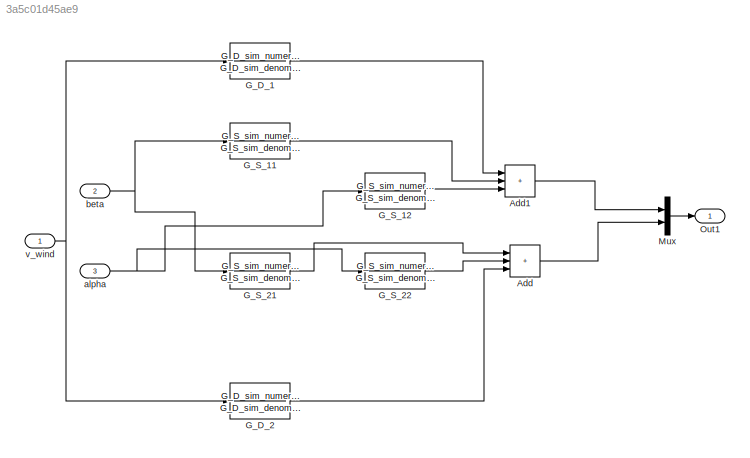
MODEL slx_3a5c01d45ae9
KIND model
CONFIG AbsTol = auto
CONFIG EnableMultiTasking = off
CONFIG FixedStep = auto
CONFIG MaxStep = auto
CONFIG MinStep = auto
CONFIG RelTol = 1e-3
CONFIG SampleTimeConstraint = Unconstrained
CONFIG SolverName = VariableStepAuto
CONFIG StartTime = 0.0
CONFIG StopTime = 10.0
BLOCK [Sum] Add
  IconShape = rectangular
  Inputs = +++
BLOCK [Sum] Add1
  IconShape = rectangular
  Inputs = +++
BLOCK [TransferFcn] G_D_1
  Denominator = G_D_sim_denominator_1{1}
  Numerator = G_D_sim_numerator_1{1}
BLOCK [TransferFcn] G_D_2
  Denominator = G_D_sim_denominator_2{1}
  Numerator = G_D_sim_numerator_2{1}
BLOCK [TransferFcn] G_S_11
  Denominator = G_S_sim_denominator_11{1}
  Numerator = G_S_sim_numerator_11{1}
BLOCK [TransferFcn] G_S_12
  Denominator = G_S_sim_denominator_12{1}
  Numerator = G_S_sim_numerator_12{1}
BLOCK [TransferFcn] G_S_21
  Denominator = G_S_sim_denominator_21{1}
  Numerator = G_S_sim_numerator_21{1}
BLOCK [TransferFcn] G_S_22
  Denominator = G_S_sim_denominator_22{1}
  Numerator = G_S_sim_numerator_22{1}
BLOCK [Mux] Mux
  DisplayOption = bar
  Inputs = 2
BLOCK [Outport] Out1
BLOCK [Inport] alpha
  Port = 3
BLOCK [Inport] beta
  Port = 2
BLOCK [Inport] v_wind
LINE Add1:1 -> Mux:1
LINE Add:1 -> Mux:2
LINE G_D_1:1 -> Add1:1
LINE G_D_2:1 -> Add:3
LINE G_S_11:1 -> Add1:2
LINE G_S_12:1 -> Add1:3
LINE G_S_21:1 -> Add:1
LINE G_S_22:1 -> Add:2
LINE Mux:1 -> Out1:1
NET alpha:1 -> G_S_12:1, G_S_22:1
NET beta:1 -> G_S_11:1, G_S_21:1
NET v_wind:1 -> G_D_1:1, G_D_2:1
note: NET lines group one-source signal fan-out (src -> all destinations, sorted); 1:1 wires keep LINE
